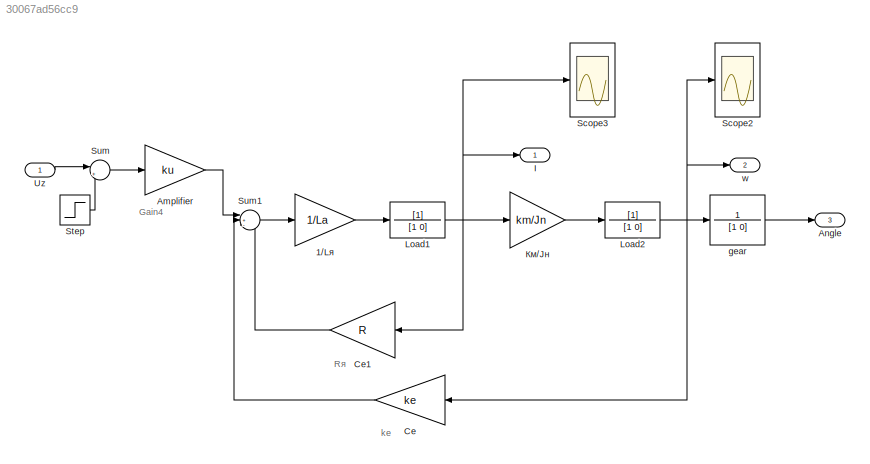
MODEL slx_30067ad56cc9
KIND model
CONFIG AbsTol = auto
CONFIG EnableMultiTasking = off
CONFIG FixedStep = 1e-4
CONFIG MaxStep = auto
CONFIG MinStep = auto
CONFIG RelTol = 1e-3
CONFIG SampleTimeConstraint = Unconstrained
CONFIG SolverName = ode3
CONFIG StartTime = 0.0
CONFIG StopTime = 0.5
BLOCK [Gain] 1//Lя
  Gain = 1/La
BLOCK [Gain] Amplifier
  Gain = ku
BLOCK [Outport] Angle
  Port = 3
BLOCK [Gain] Ce
  Gain = ke
BLOCK [Gain] Ce1
  Gain = R
BLOCK [Outport] I
BLOCK [TransferFcn] Load1
  Denominator = [1 0]
BLOCK [TransferFcn] Load2
  Denominator = [1 0]
BLOCK [Scope] Scope2
  Floating = off
  NumInputPorts = 1
  Ports = [1]
  ScopeSpecificationString = Simulink.scopes.TimeScopeBlockCfg('CurrentConfiguration', extmgr.ConfigurationSet(extmgr.Configuration('Core','General UI',true,'FigureColor',[1 1 1]),extmgr.Configuration('Core','Source UI',true),extmgr.Configuration('Sources','WiredSimulink',true,'DataLoggingVariableName','ScopeData2'),extmgr.Configuration('Visuals','Time Domain',true,'SerializedDisplays',{struct('MinYLimReal','-10.59322','MaxYL...<+1730ch>
BLOCK [Scope] Scope3
  Floating = off
  NumInputPorts = 1
  Ports = [1]
  ScopeSpecificationString = Simulink.scopes.TimeScopeBlockCfg('CurrentConfiguration', extmgr.ConfigurationSet(extmgr.Configuration('Core','General UI',true,'FigureColor',[1 1 1]),extmgr.Configuration('Core','Source UI',true),extmgr.Configuration('Sources','WiredSimulink',true),extmgr.Configuration('Visuals','Time Domain',true,'SerializedDisplays',{struct('MinYLimReal','-0.04367','MaxYLimReal','0.39307','YLabelReal','I, A','M...<+1954ch>
BLOCK [Step] Step
  SampleTime = 0
  Time = 0
BLOCK [Sum] Sum
  Inputs = |++
  Ports = [2, 1]
BLOCK [Sum] Sum1
  Inputs = |+--
  Ports = [3, 1]
BLOCK [Inport] Uz
BLOCK [TransferFcn] gear
  Denominator = [1 0]
  Numerator = 1
BLOCK [Outport] w
  Port = 2
BLOCK [Gain] Км//Jн
  Gain = km/Jn
ANNOTATION (root): Rя
ANNOTATION (root): Gain4
ANNOTATION (root): kе
LINE 1//Lя:1 -> Load1:1
LINE Amplifier:1 -> Sum1:1
LINE Ce1:1 -> Sum1:3
LINE Ce:1 -> Sum1:2
NET Load1:1 -> Ce1:1, I:1, Scope3:1, Км//Jн:1
NET Load2:1 -> Ce:1, Scope2:1, gear:1, w:1
LINE Step:1 -> Sum:2
LINE Sum1:1 -> 1//Lя:1
LINE Sum:1 -> Amplifier:1
LINE Uz:1 -> Sum:1
LINE gear:1 -> Angle:1
LINE Км//Jн:1 -> Load2:1
note: NET lines group one-source signal fan-out (src -> all destinations, sorted); 1:1 wires keep LINE
